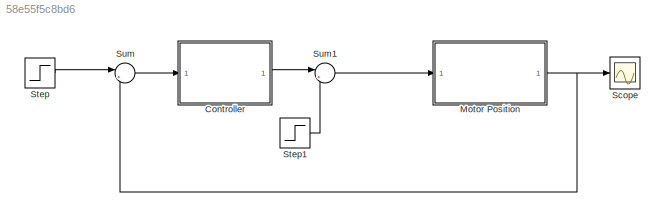
MODEL slx_58e55f5c8bd6
KIND model
CONFIG AbsTol = auto
CONFIG EnableMultiTasking = off
CONFIG FixedStep = auto
CONFIG MaxStep = auto
CONFIG MinStep = auto
CONFIG RelTol = 1e-3
CONFIG SampleTimeConstraint = Unconstrained
CONFIG SolverName = ode15s
CONFIG StartTime = 0.0
CONFIG StopTime = 0.2
BLOCK [ModelReference] Controller
  ModelNameDialog = Controller
  ModelReferenceVersion = 1.12
  Ports = [1, 1]
BLOCK [ModelReference] Motor Position
  ModelNameDialog = MotorPosition
  ModelReferenceVersion = 1.5
  Ports = [1, 1]
BLOCK [Scope] Scope
  Floating = off
  NumInputPorts = 1
  Ports = [1]
  ScopeSpecificationString = Simulink.scopes.TimeScopeBlockCfg('CurrentConfiguration', extmgr.ConfigurationSet(extmgr.Configuration('Core','General UI',true),extmgr.Configuration('Core','Source UI',true),extmgr.Configuration('Sources','WiredSimulink',true),extmgr.Configuration('Visuals','Time Domain',true,'SerializedDisplays',{struct('MinYLimReal','-0.14429','MaxYLimReal','1.29864','YLabelReal','','MinYLimMag','0.00000','MaxY...<+1386ch>
BLOCK [Step] Step
  SampleTime = 0
  Time = 0
BLOCK [Step] Step1
  SampleTime = 0
  Time = 0.1
BLOCK [Sum] Sum
  Inputs = |+-
  Ports = [2, 1]
BLOCK [Sum] Sum1
  Inputs = |++
  Ports = [2, 1]
LINE Controller:1 -> Sum1:1
NET Motor Position:1 -> Scope:1, Sum:2
LINE Step1:1 -> Sum1:2
LINE Step:1 -> Sum:1
LINE Sum1:1 -> Motor Position:1
LINE Sum:1 -> Controller:1
note: NET lines group one-source signal fan-out (src -> all destinations, sorted); 1:1 wires keep LINE
